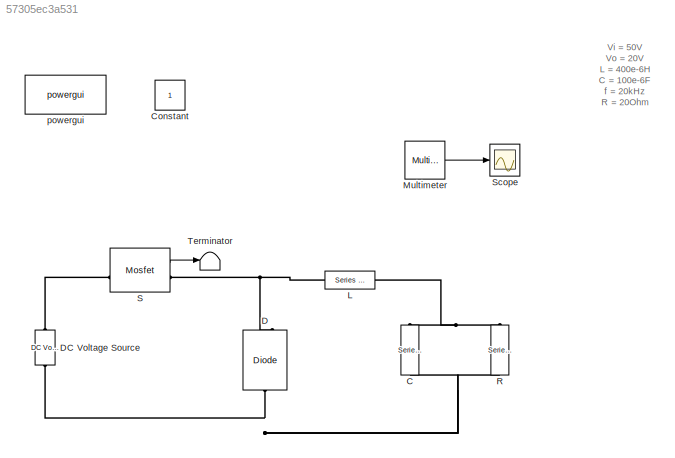
MODEL slx_57305ec3a531
KIND model
CONFIG AbsTol = auto
CONFIG EnableMultiTasking = off
CONFIG FixedStep = auto
CONFIG MaxStep = 1e-4
CONFIG MinStep = auto
CONFIG RelTol = 1e-3
CONFIG SampleTimeConstraint = Unconstrained
CONFIG SolverName = VariableStepAuto
CONFIG StartTime = 0.0
CONFIG StopTime = 0.2
BLOCK [Reference] C  REF=spsSeriesRLCBranchLib/Series RLC Branch
  NameLocation = left
  Ports = [0, 0, 0, 0, 0, 1, 1]
  SourceBlock = spsSeriesRLCBranchLib/Series RLC Branch
  SourceProductBaseCode = PS
  SourceType = Series RLC Branch
BLOCK [Constant] Constant
BLOCK [Reference] D  REF=spsDiodeLib/Diode
  NameLocation = right
  Ports = [0, 1, 0, 0, 0, 1, 1]
  SourceBlock = spsDiodeLib/Diode
  SourceProductBaseCode = PS
  SourceType = Diode
BLOCK [Reference] DC Voltage Source  REF=spsDCVoltageSourceLib/DC Voltage Source
  Ports = [0, 0, 0, 0, 0, 1, 1]
  SourceBlock = spsDCVoltageSourceLib/DC Voltage Source
  SourceProductBaseCode = PS
  SourceType = DC Voltage Source
BLOCK [Reference] L  REF=spsSeriesRLCBranchLib/Series RLC Branch
  NameLocation = top
  Ports = [0, 0, 0, 0, 0, 1, 1]
  SourceBlock = spsSeriesRLCBranchLib/Series RLC Branch
  SourceProductBaseCode = PS
  SourceType = Series RLC Branch
BLOCK [Reference] Multimeter  REF=spsMultimeterLib/Multimeter
  Ports = [0, 1]
  SourceBlock = spsMultimeterLib/Multimeter
  SourceProductBaseCode = PS
  SourceType = MultimeterPSB
BLOCK [Reference] R  REF=spsSeriesRLCBranchLib/Series RLC Branch
  NameLocation = left
  Ports = [0, 0, 0, 0, 0, 1, 1]
  SourceBlock = spsSeriesRLCBranchLib/Series RLC Branch
  SourceProductBaseCode = PS
  SourceType = Series RLC Branch
BLOCK [Reference] S  REF=spsMosfetLib/Mosfet
  Ports = [1, 1, 0, 0, 0, 1, 1]
  SourceBlock = spsMosfetLib/Mosfet
  SourceProductBaseCode = PS
  SourceType = Mosfet
BLOCK [Scope] Scope
  Floating = off
  NumInputPorts = 1
  Ports = [1]
  ScopeSpecificationString = Simulink.scopes.TimeScopeBlockCfg('CurrentConfiguration', extmgr.ConfigurationSet(extmgr.Configuration('Core','General UI',true),extmgr.Configuration('Core','Source UI',true),extmgr.Configuration('Sources','WiredSimulink',true),extmgr.Configuration('Visuals','Time Domain',true,'SerializedDisplays',{struct('MinYLimReal','19.49288','MaxYLimReal','19.75874','YLabelReal','','MinYLimMag','19.49288','Ma...<+1449ch>
BLOCK [Terminator] Terminator
BLOCK [Reference] powergui  REF=spspowerguiLib/powergui
  Ports = []
  Priority = 1
  SourceBlock = spspowerguiLib/powergui
  SourceProductBaseCode = PS
  SourceType = PSB option menu block
ANNOTATION (root): Vi = 50V Vo = 20V L = 400e-6H C = 100e-6F f = 20kHz R = 20Ohm
LINE Multimeter:1 -> Scope:1
LINE S:1 -> Terminator:1
PNET net1: C:LConn1 -- L:LConn1 -- R:LConn1
PNET net2: C:RConn1 -- D:LConn1 -- DC Voltage Source:LConn1 -- R:RConn1
PNET net3: D:RConn1 -- L:RConn1 -- S:RConn1
PLINE DC Voltage Source:RConn1 -- S:LConn1
note: PNET lines group multi-terminal physical nets as a canonical sorted terminal list (undirected conserving connections); 2-terminal nets keep the pairwise PLINE form
